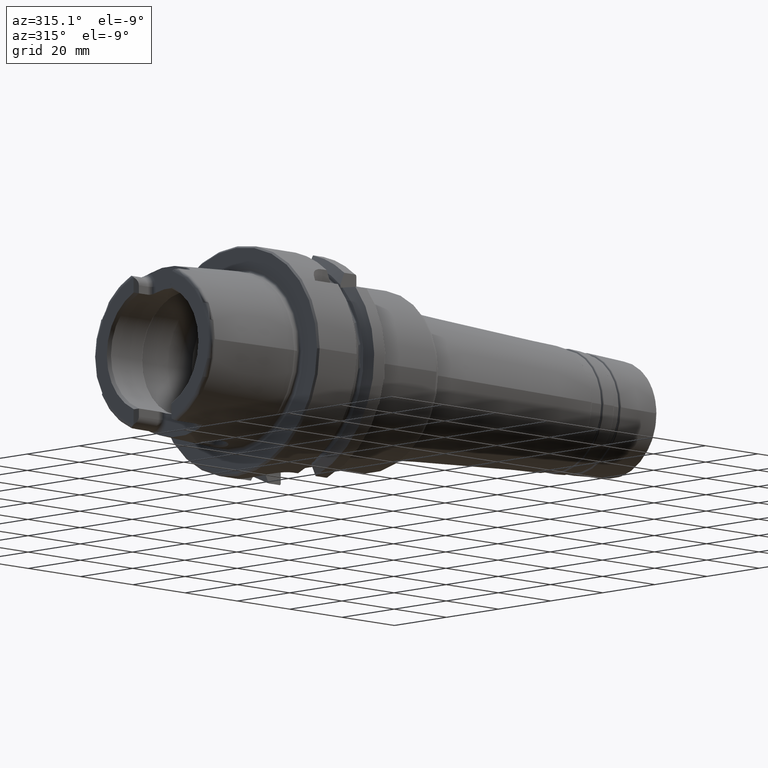
[diagram: clean part render]
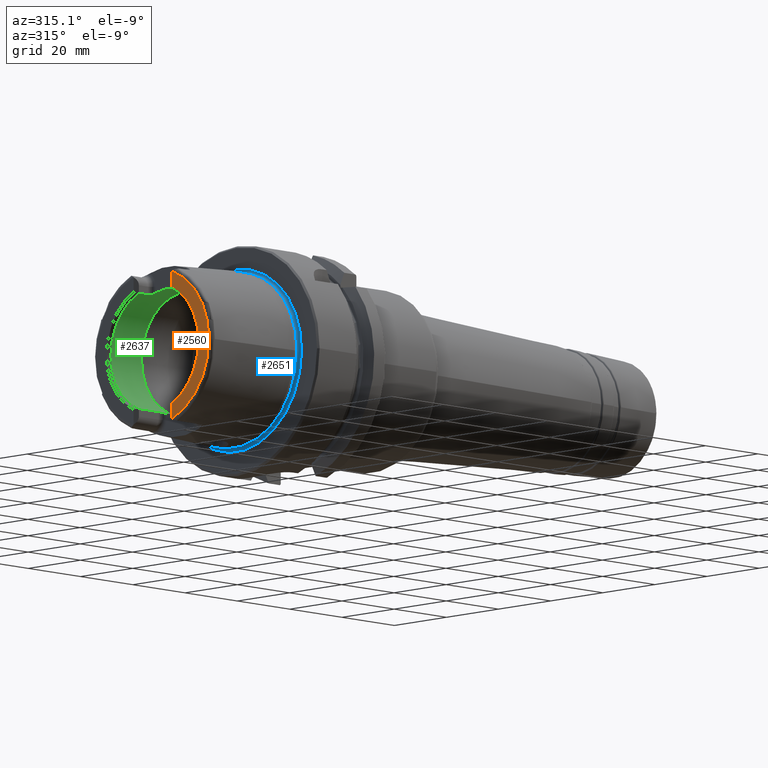
[diagram: same view with three faces highlighted in distinct colors, each labeled with its STEP entity id]
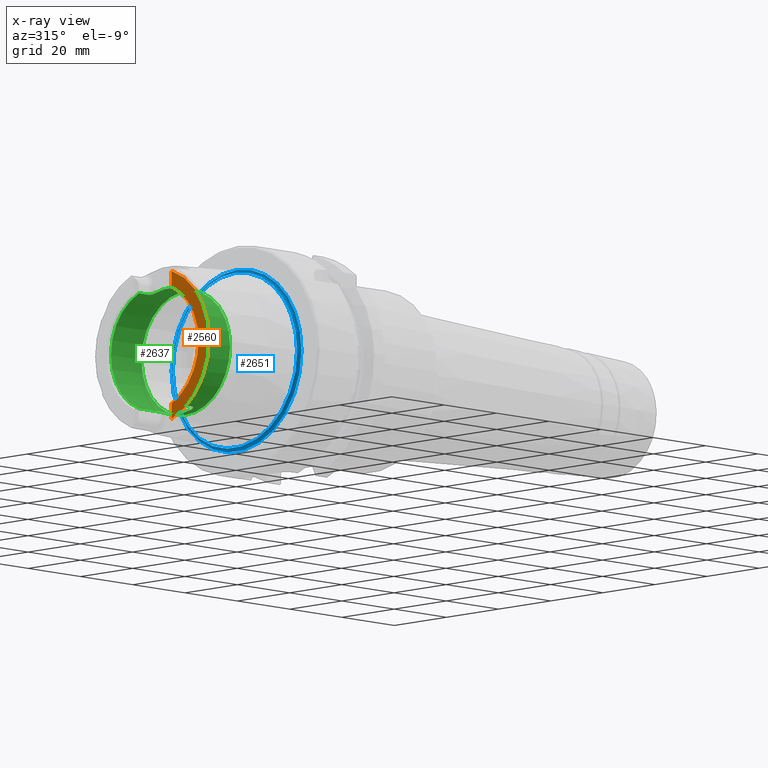
[diagram: x-ray of the same camera — body ghosted, the three highlighted faces saturated]
A machine part, auxiliary view with three faces highlighted in distinct colors.
The next image is the same camera in x-ray (body ghosted, the three faces saturated) — at least one of them is partly hidden behind the body in this view.
Their STEP definitions:

[orange] entity #2560 — the highlighted planar face has unit normal (-1, 0, 0).
#113=PLANE('',#2821);
#251=FACE_OUTER_BOUND('',#390,.T.);
#390=EDGE_LOOP('',(#1909,#1910,#1911,#1912,#1913,#1914));
#522=LINE('',#4147,#639);
#524=LINE('',#4166,#641);
#639=VECTOR('',#3338,10.);
#641=VECTOR('',#3360,10.);
#832=CIRCLE('',#2817,17.5773502691896);
#835=CIRCLE('',#2822,2.88);
#836=CIRCLE('',#2823,21.5760400159857);
#837=CIRCLE('',#2824,2.88);
#1051=VERTEX_POINT('',#4144);
#1052=VERTEX_POINT('',#4146);
#1054=VERTEX_POINT('',#4152);
#1057=VERTEX_POINT('',#4160);
#1058=VERTEX_POINT('',#4162);
#1059=VERTEX_POINT('',#4164);
#1370=EDGE_CURVE('',#1051,#1052,#522,.T.);
#1373=EDGE_CURVE('',#1052,#1054,#832,.T.);
#1377=EDGE_CURVE('',#1051,#1057,#835,.T.);
#1378=EDGE_CURVE('',#1058,#1057,#836,.T.);
#1379=EDGE_CURVE('',#1058,#1059,#837,.T.);
#1380=EDGE_CURVE('',#1054,#1059,#524,.T.);
#1909=ORIENTED_EDGE('',*,*,#1370,.F.);
#1910=ORIENTED_EDGE('',*,*,#1377,.T.);
#1911=ORIENTED_EDGE('',*,*,#1378,.F.);
#1912=ORIENTED_EDGE('',*,*,#1379,.T.);
#1913=ORIENTED_EDGE('',*,*,#1380,.F.);
#1914=ORIENTED_EDGE('',*,*,#1373,.F.);
#2560=ADVANCED_FACE('',(#251),#113,.T.);
#2817=AXIS2_PLACEMENT_3D('',#4153,#3344,#3345);
#2821=AXIS2_PLACEMENT_3D('',#4159,#3352,#3353);
#2822=AXIS2_PLACEMENT_3D('',#4161,#3354,#3355);
#2823=AXIS2_PLACEMENT_3D('',#4163,#3356,#3357);
#2824=AXIS2_PLACEMENT_3D('',#4165,#3358,#3359);
#3338=DIRECTION('',(0.,0.,1.));
#3344=DIRECTION('center_axis',(-1.,0.,0.));
#3345=DIRECTION('ref_axis',(0.,-1.,0.));
#3352=DIRECTION('center_axis',(-1.,0.,0.));
#3353=DIRECTION('ref_axis',(0.,0.,1.));
#3354=DIRECTION('center_axis',(-1.,0.,0.));
#3355=DIRECTION('ref_axis',(0.,-1.,0.));
#3356=DIRECTION('center_axis',(1.,0.,0.));
#3357=DIRECTION('ref_axis',(0.,0.,-1.));
#3358=DIRECTION('center_axis',(-1.,0.,0.));
#3359=DIRECTION('ref_axis',(0.,0.453346760926795,-0.891334232685576));
#3360=DIRECTION('',(0.,1.58830189502884E-16,1.));
#4144=CARTESIAN_POINT('',(-32.,-7.27,-20.1717424229271));
#4146=CARTESIAN_POINT('',(-32.,-7.27,-16.003447831195));
#4147=CARTESIAN_POINT('',(-32.,-7.27,-8.995));
#4152=CARTESIAN_POINT('',(-32.,-7.26999999999999,16.003447831195));
#4153=CARTESIAN_POINT('Origin',(-32.,0.,0.));
#4159=CARTESIAN_POINT('Origin',(-32.,21.5760400159857,0.));
#4160=CARTESIAN_POINT('',(-32.,-7.39118810947246,-20.2705658801576));
#4161=CARTESIAN_POINT('Origin',(-32.,-9.15,-17.99));
#4162=CARTESIAN_POINT('',(-32.,-7.39118810947246,20.2705658801576));
#4163=CARTESIAN_POINT('Origin',(-32.,0.,0.));
#4164=CARTESIAN_POINT('',(-32.,-7.26999999999999,20.1717424229271));
#4165=CARTESIAN_POINT('Origin',(-32.,-9.15,17.99));
#4166=CARTESIAN_POINT('',(-32.,-7.27,5.5));

[blue] entity #2651 — the highlighted toroidal blend (fillet) surface has major radius 24.8204 mm and minor (blend) radius 0.8 mm.
#180=TOROIDAL_SURFACE('',#3021,24.8204308617234,0.8);
#342=FACE_OUTER_BOUND('',#487,.T.);
#487=EDGE_LOOP('',(#2451,#2452,#2453,#2454,#2455,#2456,#2457,#2458));
#938=CIRCLE('',#3018,24.0204308617234);
#939=CIRCLE('',#3019,24.0204308617234);
#940=CIRCLE('',#3020,24.0204308617234);
#941=CIRCLE('',#3022,0.8);
#942=CIRCLE('',#3023,24.9317693424915);
#943=CIRCLE('',#3024,24.9317693424915);
#944=CIRCLE('',#3025,24.9317693424915);
#1235=VERTEX_POINT('',#5516);
#1236=VERTEX_POINT('',#5517);
#1237=VERTEX_POINT('',#5519);
#1238=VERTEX_POINT('',#5524);
#1239=VERTEX_POINT('',#5526);
#1240=VERTEX_POINT('',#5528);
#1645=EDGE_CURVE('',#1235,#1236,#938,.T.);
#1646=EDGE_CURVE('',#1237,#1235,#939,.T.);
#1648=EDGE_CURVE('',#1236,#1237,#940,.T.);
#1649=EDGE_CURVE('',#1236,#1238,#941,.T.);
#1650=EDGE_CURVE('',#1239,#1238,#942,.T.);
#1651=EDGE_CURVE('',#1240,#1239,#943,.T.);
#1652=EDGE_CURVE('',#1238,#1240,#944,.T.);
#2451=ORIENTED_EDGE('',*,*,#1645,.T.);
#2452=ORIENTED_EDGE('',*,*,#1649,.T.);
#2453=ORIENTED_EDGE('',*,*,#1650,.F.);
#2454=ORIENTED_EDGE('',*,*,#1651,.F.);
#2455=ORIENTED_EDGE('',*,*,#1652,.F.);
#2456=ORIENTED_EDGE('',*,*,#1649,.F.);
#2457=ORIENTED_EDGE('',*,*,#1648,.T.);
#2458=ORIENTED_EDGE('',*,*,#1646,.T.);
#2651=ADVANCED_FACE('',(#342),#180,.F.);
#3018=AXIS2_PLACEMENT_3D('',#5518,#3834,#3835);
#3019=AXIS2_PLACEMENT_3D('',#5520,#3836,#3837);
#3020=AXIS2_PLACEMENT_3D('',#5522,#3839,#3840);
#3021=AXIS2_PLACEMENT_3D('',#5523,#3841,#3842);
#3022=AXIS2_PLACEMENT_3D('',#5525,#3843,#3844);
#3023=AXIS2_PLACEMENT_3D('',#5527,#3845,#3846);
#3024=AXIS2_PLACEMENT_3D('',#5529,#3847,#3848);
#3025=AXIS2_PLACEMENT_3D('',#5530,#3849,#3850);
#3834=DIRECTION('center_axis',(1.,0.,0.));
#3835=DIRECTION('ref_axis',(0.,0.,-1.));
#3836=DIRECTION('center_axis',(1.,0.,0.));
#3837=DIRECTION('ref_axis',(0.,0.,-1.));
#3839=DIRECTION('center_axis',(1.,0.,0.));
#3840=DIRECTION('ref_axis',(0.,0.,-1.));
#3841=DIRECTION('center_axis',(1.,0.,0.));
#3842=DIRECTION('ref_axis',(0.,0.,-1.));
#3843=DIRECTION('center_axis',(0.,-1.,-1.22464679914735E-16));
#3844=DIRECTION('ref_axis',(0.,-1.22464679914735E-16,1.));
#3845=DIRECTION('center_axis',(1.,0.,0.));
#3846=DIRECTION('ref_axis',(0.,0.,-1.));
#3847=DIRECTION('center_axis',(1.,0.,0.));
#3848=DIRECTION('ref_axis',(0.,0.,-1.));
#3849=DIRECTION('center_axis',(1.,0.,0.));
#3850=DIRECTION('ref_axis',(0.,0.,-1.));
#5516=CARTESIAN_POINT('',(-0.7,24.0204308617234,0.));
#5517=CARTESIAN_POINT('',(-0.699999999999998,-2.94165437689499E-15,24.0204308617234));
#5518=CARTESIAN_POINT('Origin',(-0.699999999999998,0.,0.));
#5519=CARTESIAN_POINT('',(-0.699999999999998,-24.0204308617234,-2.94165437689499E-15));
#5520=CARTESIAN_POINT('Origin',(-0.699999999999998,0.,0.));
#5522=CARTESIAN_POINT('Origin',(-0.699999999999998,0.,0.));
#5523=CARTESIAN_POINT('Origin',(-0.699999999999998,0.,0.));
#5524=CARTESIAN_POINT('',(0.0922144549932558,-3.05326115223623E-15,24.9317693424915));
#5525=CARTESIAN_POINT('Origin',(-0.699999999999998,-3.03962612082678E-15,
24.8204308617234));
#5526=CARTESIAN_POINT('',(0.0922144549932569,24.9317693424915,0.));
#5527=CARTESIAN_POINT('Origin',(0.0922144549932558,0.,0.));
#5528=CARTESIAN_POINT('',(0.0922144549932574,-24.9317693424915,-3.05326115223623E-15));
#5529=CARTESIAN_POINT('Origin',(0.0922144549932558,0.,0.));
#5530=CARTESIAN_POINT('Origin',(0.0922144549932558,0.,0.));

[green] entity #2637 — the highlighted cylindrical surface (bore or boss wall) has radius 17 mm, axis along (-1, 0, 0).
#84=B_SPLINE_CURVE_WITH_KNOTS('',3,(#5338,#5339,#5340,#5341,#5342,#5343,
#5344,#5345,#5346,#5347),.UNSPECIFIED.,.F.,.F.,(4,2,2,2,4),(0.229569660485746,
0.289239803007022,0.348909945528297,0.405407845050218,0.46190574457214),
 .UNSPECIFIED.);
#85=B_SPLINE_CURVE_WITH_KNOTS('',3,(#5356,#5357,#5358,#5359,#5360,#5361,
#5362,#5363,#5364,#5365),.UNSPECIFIED.,.F.,.F.,(4,2,2,2,4),(0.46190574457214,
0.519239917776744,0.576574090981348,0.635410522815223,0.694246954649097),
 .UNSPECIFIED.);
#86=B_SPLINE_CURVE_WITH_KNOTS('',3,(#5378,#5379,#5380,#5381,#5382,#5383,
#5384,#5385,#5386,#5387),.UNSPECIFIED.,.F.,.F.,(4,2,2,2,4),(0.461905744572139,
0.518403644094061,0.574901543615982,0.634571686137257,0.694241828658533),
 .UNSPECIFIED.);
#87=B_SPLINE_CURVE_WITH_KNOTS('',3,(#5407,#5408,#5409,#5410,#5411,#5412,
#5413,#5414,#5415,#5416),.UNSPECIFIED.,.F.,.F.,(4,2,2,2,4),(0.229569660485747,
0.289239803007022,0.348909945528297,0.405407845050218,0.46190574457214),
 .UNSPECIFIED.);
#210=CYLINDRICAL_SURFACE('',#2978,17.);
#328=FACE_OUTER_BOUND('',#470,.T.);
#470=EDGE_LOOP('',(#2354,#2355,#2356,#2357,#2358,#2359,#2360,#2361,#2362,
#2363,#2364,#2365,#2366,#2367,#2368,#2369,#2370,#2371));
#529=LINE('',#4181,#646);
#534=LINE('',#4231,#651);
#538=LINE('',#4295,#655);
#602=LINE('',#5403,#719);
#606=LINE('',#5453,#723);
#646=VECTOR('',#3373,10.);
#651=VECTOR('',#3392,10.);
#655=VECTOR('',#3414,10.);
#719=VECTOR('',#3708,10.);
#723=VECTOR('',#3754,17.);
#833=CIRCLE('',#2819,17.);
#834=CIRCLE('',#2820,17.);
#903=CIRCLE('',#2957,17.);
#908=CIRCLE('',#2969,17.);
#910=CIRCLE('',#2976,17.);
#912=CIRCLE('',#2979,17.);
#913=CIRCLE('',#2980,17.);
#914=CIRCLE('',#2981,17.);
#1053=VERTEX_POINT('',#4148);
#1055=VERTEX_POINT('',#4154);
#1056=VERTEX_POINT('',#4156);
#1062=VERTEX_POINT('',#4171);
#1065=VERTEX_POINT('',#4179);
#1073=VERTEX_POINT('',#4229);
#1079=VERTEX_POINT('',#4262);
#1084=VERTEX_POINT('',#4294);
#1201=VERTEX_POINT('',#5336);
#1203=VERTEX_POINT('',#5355);
#1207=VERTEX_POINT('',#5376);
#1208=VERTEX_POINT('',#5377);
#1210=VERTEX_POINT('',#5397);
#1212=VERTEX_POINT('',#5448);
#1213=VERTEX_POINT('',#5449);
#1214=VERTEX_POINT('',#5451);
#1375=EDGE_CURVE('',#1055,#1056,#833,.T.);
#1376=EDGE_CURVE('',#1056,#1053,#834,.T.);
#1387=EDGE_CURVE('',#1062,#1065,#529,.T.);
#1398=EDGE_CURVE('',#1055,#1073,#534,.T.);
#1411=EDGE_CURVE('',#1084,#1079,#538,.T.);
#1581=EDGE_CURVE('',#1201,#1073,#84,.T.);
#1585=EDGE_CURVE('',#1084,#1203,#85,.T.);
#1591=EDGE_CURVE('',#1207,#1208,#86,.T.);
#1597=EDGE_CURVE('',#1210,#1208,#903,.T.);
#1600=EDGE_CURVE('',#1207,#1053,#602,.T.);
#1603=EDGE_CURVE('',#1210,#1065,#87,.T.);
#1607=EDGE_CURVE('',#1201,#1203,#908,.T.);
#1611=EDGE_CURVE('',#1062,#1079,#910,.T.);
#1613=EDGE_CURVE('',#1212,#1213,#912,.T.);
#1614=EDGE_CURVE('',#1214,#1212,#913,.T.);
#1615=EDGE_CURVE('',#1214,#1056,#606,.T.);
#1616=EDGE_CURVE('',#1213,#1214,#914,.T.);
#2354=ORIENTED_EDGE('',*,*,#1613,.F.);
#2355=ORIENTED_EDGE('',*,*,#1614,.F.);
#2356=ORIENTED_EDGE('',*,*,#1615,.T.);
#2357=ORIENTED_EDGE('',*,*,#1375,.F.);
#2358=ORIENTED_EDGE('',*,*,#1398,.T.);
#2359=ORIENTED_EDGE('',*,*,#1581,.F.);
#2360=ORIENTED_EDGE('',*,*,#1607,.T.);
#2361=ORIENTED_EDGE('',*,*,#1585,.F.);
#2362=ORIENTED_EDGE('',*,*,#1411,.T.);
#2363=ORIENTED_EDGE('',*,*,#1611,.F.);
#2364=ORIENTED_EDGE('',*,*,#1387,.T.);
#2365=ORIENTED_EDGE('',*,*,#1603,.F.);
#2366=ORIENTED_EDGE('',*,*,#1597,.T.);
#2367=ORIENTED_EDGE('',*,*,#1591,.F.);
#2368=ORIENTED_EDGE('',*,*,#1600,.T.);
#2369=ORIENTED_EDGE('',*,*,#1376,.F.);
#2370=ORIENTED_EDGE('',*,*,#1615,.F.);
#2371=ORIENTED_EDGE('',*,*,#1616,.F.);
#2637=ADVANCED_FACE('',(#328),#210,.F.);
#2819=AXIS2_PLACEMENT_3D('',#4157,#3348,#3349);
#2820=AXIS2_PLACEMENT_3D('',#4158,#3350,#3351);
#2957=AXIS2_PLACEMENT_3D('',#5398,#3701,#3702);
#2969=AXIS2_PLACEMENT_3D('',#5425,#3729,#3730);
#2976=AXIS2_PLACEMENT_3D('',#5445,#3744,#3745);
#2978=AXIS2_PLACEMENT_3D('',#5447,#3748,#3749);
#2979=AXIS2_PLACEMENT_3D('',#5450,#3750,#3751);
#2980=AXIS2_PLACEMENT_3D('',#5452,#3752,#3753);
#2981=AXIS2_PLACEMENT_3D('',#5454,#3755,#3756);
#3348=DIRECTION('center_axis',(1.,0.,0.));
#3349=DIRECTION('ref_axis',(0.,-1.,0.));
#3350=DIRECTION('center_axis',(1.,0.,0.));
#3351=DIRECTION('ref_axis',(0.,-1.,0.));
#3373=DIRECTION('',(1.,0.,0.));
#3392=DIRECTION('',(1.,0.,0.));
#3414=DIRECTION('',(-1.,0.,0.));
#3701=DIRECTION('center_axis',(-1.,0.,0.));
#3702=DIRECTION('ref_axis',(0.,1.,0.));
#3708=DIRECTION('',(-1.,0.,0.));
#3729=DIRECTION('center_axis',(-1.,0.,0.));
#3730=DIRECTION('ref_axis',(0.,1.,0.));
#3744=DIRECTION('center_axis',(1.,0.,0.));
#3745=DIRECTION('ref_axis',(0.,-1.,0.));
#3748=DIRECTION('center_axis',(-1.,0.,0.));
#3749=DIRECTION('ref_axis',(0.,1.,0.));
#3750=DIRECTION('center_axis',(-1.,0.,0.));
#3751=DIRECTION('ref_axis',(0.,0.,1.));
#3752=DIRECTION('center_axis',(-1.,0.,0.));
#3753=DIRECTION('ref_axis',(0.,0.,1.));
#3754=DIRECTION('',(-1.,0.,0.));
#3755=DIRECTION('center_axis',(-1.,0.,0.));
#3756=DIRECTION('ref_axis',(0.,0.,1.));
#4148=CARTESIAN_POINT('',(-31.,-6.27,-15.8014904360317));
#4154=CARTESIAN_POINT('',(-31.,-6.27,15.8014904360317));
#4156=CARTESIAN_POINT('',(-31.,-17.,2.0818995585505E-15));
#4157=CARTESIAN_POINT('Origin',(-31.,0.,0.));
#4158=CARTESIAN_POINT('Origin',(-31.,0.,0.));
#4171=CARTESIAN_POINT('',(-31.,6.27,-15.8014904360317));
#4179=CARTESIAN_POINT('',(-23.5,6.27,-15.8014904360317));
#4181=CARTESIAN_POINT('',(-25.6423502691896,6.27,-15.8014904360317));
#4229=CARTESIAN_POINT('',(-27.5,-6.27,15.8014904360317));
#4231=CARTESIAN_POINT('',(-25.6423502691896,-6.27,15.8014904360317));
#4262=CARTESIAN_POINT('',(-31.,6.27,15.8014904360317));
#4294=CARTESIAN_POINT('',(-27.5,6.27,15.8014904360317));
#4295=CARTESIAN_POINT('',(-25.6423502691896,6.27,15.8014904360317));
#5336=CARTESIAN_POINT('',(-26.,-4.77,16.3170800083839));
#5338=CARTESIAN_POINT('Ctrl Pts',(-26.,-4.77,16.3170800083839));
#5339=CARTESIAN_POINT('Ctrl Pts',(-26.,-4.96091029208457,16.2612708750845));
#5340=CARTESIAN_POINT('Ctrl Pts',(-26.0385404635846,-5.16378617408596,16.1979610859593));
#5341=CARTESIAN_POINT('Ctrl Pts',(-26.1950909803916,-5.53690543536203,16.0742436586733));
#5342=CARTESIAN_POINT('Ctrl Pts',(-26.3130861154278,-5.70721093092864,16.01400454532));
#5343=CARTESIAN_POINT('Ctrl Pts',(-26.5811791540138,-5.96960590306613,15.9179857910505));
#5344=CARTESIAN_POINT('Ctrl Pts',(-26.7467155703026,-6.082078486584,15.8749745356799));
#5345=CARTESIAN_POINT('Ctrl Pts',(-27.1119229195206,-6.23232125085234,15.8165946761251));
#5346=CARTESIAN_POINT('Ctrl Pts',(-27.3116736682603,-6.27,15.8014904360317));
#5347=CARTESIAN_POINT('Ctrl Pts',(-27.5,-6.27,15.8014904360317));
#5355=CARTESIAN_POINT('',(-26.,4.77,16.3170800083839));
#5356=CARTESIAN_POINT('Ctrl Pts',(-27.5,6.27,15.8014904360317));
#5357=CARTESIAN_POINT('Ctrl Pts',(-27.308886089318,6.27,15.8014904360317));
#5358=CARTESIAN_POINT('Ctrl Pts',(-27.1064099842243,6.23121026569193,15.8170435837256));
#5359=CARTESIAN_POINT('Ctrl Pts',(-26.7371019784685,6.07691823919465,15.8769617281184));
#5360=CARTESIAN_POINT('Ctrl Pts',(-26.5701870418163,5.96150738537594,15.9210500039306));
#5361=CARTESIAN_POINT('Ctrl Pts',(-26.3050641818979,5.69638452545756,16.017853695422));
#5362=CARTESIAN_POINT('Ctrl Pts',(-26.1900212186221,5.52750941197086,16.0774506535614));
#5363=CARTESIAN_POINT('Ctrl Pts',(-26.0374824299787,5.15846789211413,16.1996292802954));
#5364=CARTESIAN_POINT('Ctrl Pts',(-26.,4.95824289522375,16.2620506397863));
#5365=CARTESIAN_POINT('Ctrl Pts',(-26.,4.77,16.3170800083839));
#5376=CARTESIAN_POINT('',(-23.5,-6.27,-15.8014904360317));
#5377=CARTESIAN_POINT('',(-22.,-4.77,-16.3170800083839));
#5378=CARTESIAN_POINT('Ctrl Pts',(-23.5,-6.27,-15.8014904360317));
#5379=CARTESIAN_POINT('Ctrl Pts',(-23.3116736682603,-6.27,-15.8014904360317));
#5380=CARTESIAN_POINT('Ctrl Pts',(-23.1119229195206,-6.23232125085234,-15.8165946761251));
#5381=CARTESIAN_POINT('Ctrl Pts',(-22.7467155703026,-6.082078486584,-15.8749745356799));
#5382=CARTESIAN_POINT('Ctrl Pts',(-22.5811791540138,-5.96960590306613,-15.9179857910505));
#5383=CARTESIAN_POINT('Ctrl Pts',(-22.3130861154278,-5.70721093092864,-16.01400454532));
#5384=CARTESIAN_POINT('Ctrl Pts',(-22.1950909803916,-5.53690543536204,-16.0742436586733));
#5385=CARTESIAN_POINT('Ctrl Pts',(-22.0385404635846,-5.16378617408596,-16.1979610859593));
#5386=CARTESIAN_POINT('Ctrl Pts',(-22.,-4.96091029208457,-16.2612708750845));
#5387=CARTESIAN_POINT('Ctrl Pts',(-22.,-4.77,-16.3170800083839));
#5397=CARTESIAN_POINT('',(-22.,4.77,-16.3170800083839));
#5398=CARTESIAN_POINT('Origin',(-22.,0.,0.));
#5403=CARTESIAN_POINT('',(-25.6423502691896,-6.27,-15.8014904360317));
#5407=CARTESIAN_POINT('Ctrl Pts',(-22.,4.77,-16.3170800083839));
#5408=CARTESIAN_POINT('Ctrl Pts',(-22.,4.96091029208457,-16.2612708750845));
#5409=CARTESIAN_POINT('Ctrl Pts',(-22.0385404635846,5.16378617408596,-16.1979610859593));
#5410=CARTESIAN_POINT('Ctrl Pts',(-22.1950909803916,5.53690543536204,-16.0742436586733));
#5411=CARTESIAN_POINT('Ctrl Pts',(-22.3130861154278,5.70721093092864,-16.01400454532));
#5412=CARTESIAN_POINT('Ctrl Pts',(-22.5811791540138,5.96960590306613,-15.9179857910505));
#5413=CARTESIAN_POINT('Ctrl Pts',(-22.7467155703026,6.082078486584,-15.8749745356799));
#5414=CARTESIAN_POINT('Ctrl Pts',(-23.1119229195206,6.23232125085234,-15.8165946761251));
#5415=CARTESIAN_POINT('Ctrl Pts',(-23.3116736682603,6.27,-15.8014904360317));
#5416=CARTESIAN_POINT('Ctrl Pts',(-23.5,6.27,-15.8014904360317));
#5425=CARTESIAN_POINT('Origin',(-26.,0.,0.));
#5445=CARTESIAN_POINT('Origin',(-31.,0.,0.));
#5447=CARTESIAN_POINT('Origin',(-25.6423502691896,0.,0.));
#5448=CARTESIAN_POINT('',(-19.2847005383793,17.,0.));
#5449=CARTESIAN_POINT('',(-19.2847005383793,-2.0818995585505E-15,-17.));
#5450=CARTESIAN_POINT('Origin',(-19.2847005383793,0.,0.));
#5451=CARTESIAN_POINT('',(-19.2847005383793,-17.,2.0818995585505E-15));
#5452=CARTESIAN_POINT('Origin',(-19.2847005383793,0.,0.));
#5453=CARTESIAN_POINT('',(-25.6423502691896,-17.,2.0818995585505E-15));
#5454=CARTESIAN_POINT('Origin',(-19.2847005383793,0.,0.));